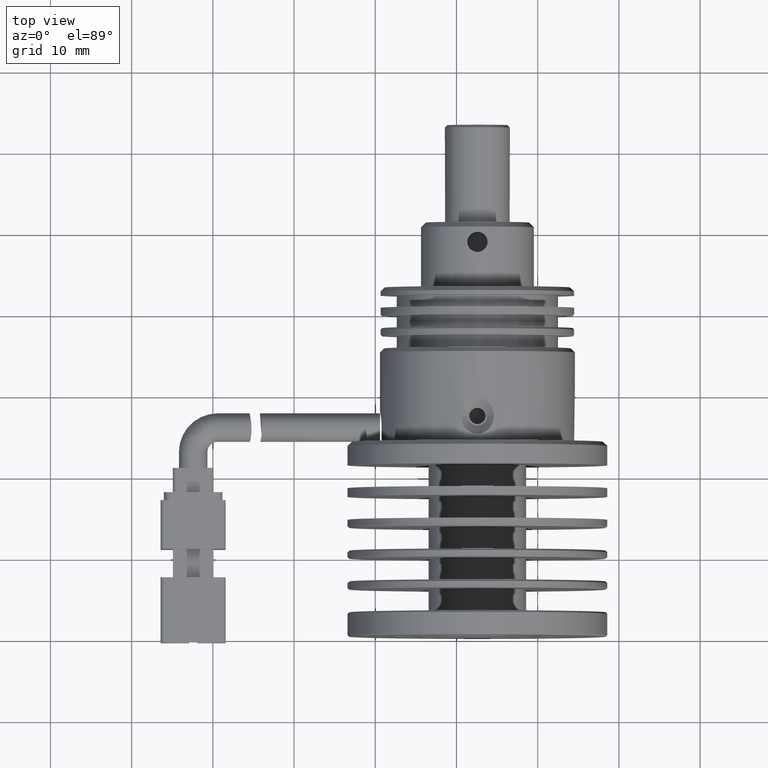
[diagram: clean part render]
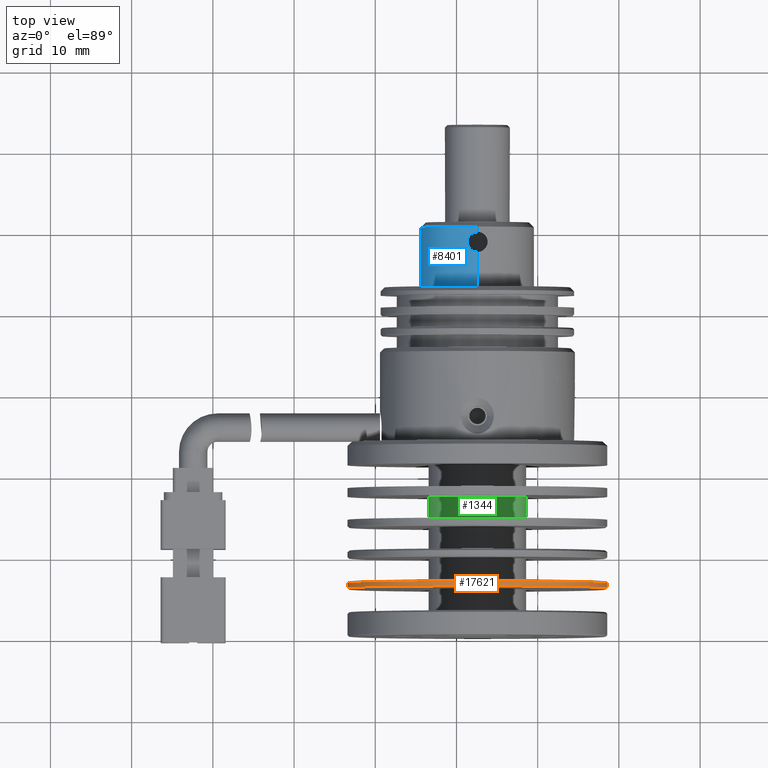
[diagram: same view with three faces highlighted in distinct colors, each labeled with its STEP entity id]
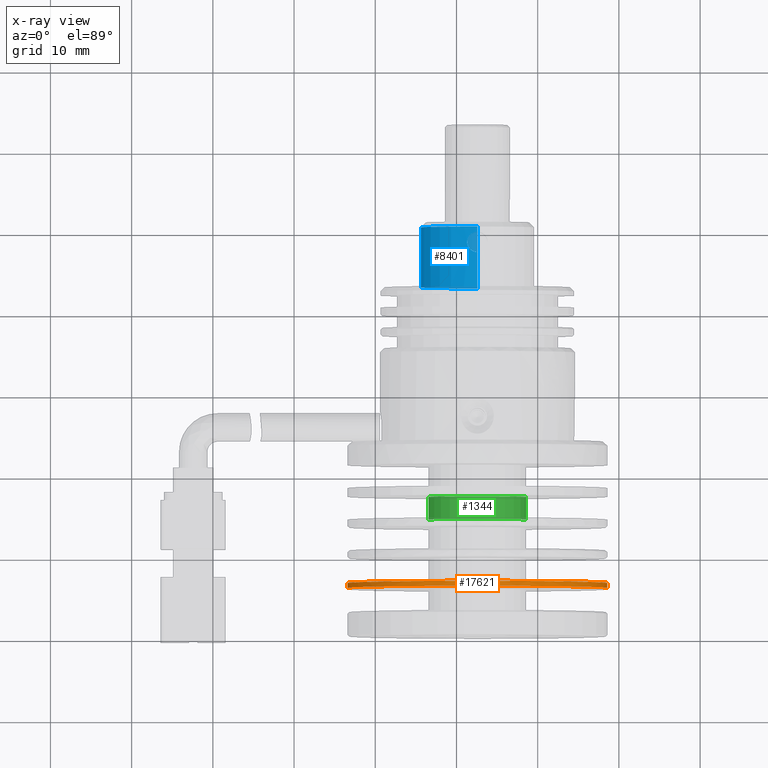
[diagram: x-ray of the same camera — body ghosted, the three highlighted faces saturated]
A machine part, top view with three faces highlighted in distinct colors.
The next image is the same camera in x-ray (body ghosted, the three faces saturated) — at least one of them is partly hidden behind the body in this view.
Their STEP definitions:

[orange] entity #17621 — the highlighted cylindrical surface (partial cylindrical patch) has radius 16 mm, axis along (-0, -1, 0).
#273 = EDGE_LOOP ( 'NONE', ( #15464, #15374, #1172, #11889, #17491 ) ) ;
#321 = DIRECTION ( 'NONE',  ( 0.0000000000000000000, 1.000000000000000000, -0.0000000000000000000 ) ) ;
#597 = DIRECTION ( 'NONE',  ( -1.000000000000000000, 0.0000000000000000000, 0.0000000000000000000 ) ) ;
#786 = EDGE_CURVE ( 'NONE', #19481, #5749, #8129, .T. ) ;
#826 = FACE_OUTER_BOUND ( 'NONE', #273, .T. ) ;
#880 = EDGE_CURVE ( 'NONE', #5749, #10954, #2851, .T. ) ;
#1041 = DIRECTION ( 'NONE',  ( -1.000000000000000000, 0.0000000000000000000, 0.0000000000000000000 ) ) ;
#1172 = ORIENTED_EDGE ( 'NONE', *, *, #18109, .F. ) ;
#1289 = VERTEX_POINT ( 'NONE', #5969 ) ;
#1414 = CARTESIAN_POINT ( 'NONE',  ( -13.42506621236430900, -10.71493551001260000, -9.174035921659418900 ) ) ;
#1942 = CARTESIAN_POINT ( 'NONE',  ( 18.57493378763569300, -33.11493551001261400, -9.174035921659420700 ) ) ;
#2851 = LINE ( 'NONE', #16503, #6944 ) ;
#2852 = AXIS2_PLACEMENT_3D ( 'NONE', #18993, #9814, #597 ) ;
#3302 = CIRCLE ( 'NONE', #8561, 16.00000000000000000 ) ;
#3718 = AXIS2_PLACEMENT_3D ( 'NONE', #10187, #19366, #1041 ) ;
#4630 = CARTESIAN_POINT ( 'NONE',  ( 2.574933787635692400, -33.11493551001261400, -9.174035921659418900 ) ) ;
#4781 = VECTOR ( 'NONE', #19880, 1000.000000000000000 ) ;
#5418 = DIRECTION ( 'NONE',  ( -1.000000000000000000, 0.0000000000000000000, 0.0000000000000000000 ) ) ;
#5749 = VERTEX_POINT ( 'NONE', #1942 ) ;
#5969 = CARTESIAN_POINT ( 'NONE',  ( -13.42506621236430900, -33.71493551001261600, -9.174035921659420700 ) ) ;
#6147 = EDGE_CURVE ( 'NONE', #12667, #1289, #8899, .T. ) ;
#6451 = EDGE_CURVE ( 'NONE', #1289, #10954, #3302, .T. ) ;
#6944 = VECTOR ( 'NONE', #15241, 1000.000000000000000 ) ;
#7071 = CYLINDRICAL_SURFACE ( 'NONE', #3718, 16.00000000000000000 ) ;
#8129 = CIRCLE ( 'NONE', #10409, 16.00000000000000000 ) ;
#8561 = AXIS2_PLACEMENT_3D ( 'NONE', #9538, #321, #11069 ) ;
#8899 = LINE ( 'NONE', #1414, #4781 ) ;
#9538 = CARTESIAN_POINT ( 'NONE',  ( 2.574933787635692400, -33.71493551001261600, -9.174035921659418900 ) ) ;
#9814 = DIRECTION ( 'NONE',  ( 0.0000000000000000000, 1.000000000000000000, -0.0000000000000000000 ) ) ;
#10187 = CARTESIAN_POINT ( 'NONE',  ( 2.574933787635692400, -10.71493551001260000, -9.174035921659418900 ) ) ;
#10409 = AXIS2_PLACEMENT_3D ( 'NONE', #4630, #18256, #5418 ) ;
#10954 = VERTEX_POINT ( 'NONE', #12610 ) ;
#11069 = DIRECTION ( 'NONE',  ( -1.000000000000000000, 0.0000000000000000000, 0.0000000000000000000 ) ) ;
#11889 = ORIENTED_EDGE ( 'NONE', *, *, #6147, .T. ) ;
#12610 = CARTESIAN_POINT ( 'NONE',  ( 18.57493378763569300, -33.71493551001261600, -9.174035921659418900 ) ) ;
#12667 = VERTEX_POINT ( 'NONE', #17265 ) ;
#14001 = CIRCLE ( 'NONE', #2852, 16.00000000000000000 ) ;
#15241 = DIRECTION ( 'NONE',  ( -0.0000000000000000000, -1.000000000000000000, 0.0000000000000000000 ) ) ;
#15374 = ORIENTED_EDGE ( 'NONE', *, *, #786, .F. ) ;
#15464 = ORIENTED_EDGE ( 'NONE', *, *, #880, .F. ) ;
#15548 = CARTESIAN_POINT ( 'NONE',  ( 2.574933787635694600, -33.11493551001261400, 6.825964078340588200 ) ) ;
#16503 = CARTESIAN_POINT ( 'NONE',  ( 18.57493378763569300, -10.71493551001260000, -9.174035921659420700 ) ) ;
#17265 = CARTESIAN_POINT ( 'NONE',  ( -13.42506621236430900, -33.11493551001261400, -9.174035921659418900 ) ) ;
#17491 = ORIENTED_EDGE ( 'NONE', *, *, #6451, .T. ) ;
#17621 = ADVANCED_FACE ( 'NONE', ( #826 ), #7071, .T. ) ;
#18109 = EDGE_CURVE ( 'NONE', #12667, #19481, #14001, .T. ) ;
#18256 = DIRECTION ( 'NONE',  ( 0.0000000000000000000, 1.000000000000000000, -0.0000000000000000000 ) ) ;
#18993 = CARTESIAN_POINT ( 'NONE',  ( 2.574933787635692400, -33.11493551001261400, -9.174035921659418900 ) ) ;
#19366 = DIRECTION ( 'NONE',  ( -0.0000000000000000000, -1.000000000000000000, 0.0000000000000000000 ) ) ;
#19481 = VERTEX_POINT ( 'NONE', #15548 ) ;
#19880 = DIRECTION ( 'NONE',  ( -0.0000000000000000000, -1.000000000000000000, 0.0000000000000000000 ) ) ;

[blue] entity #8401 — the highlighted cylindrical surface (partial cylindrical patch) has radius 7 mm, axis along (-0, -1, -0).
#496 = CARTESIAN_POINT ( 'NONE',  ( 1.358281554034157100, 8.455338221747922500, -2.280287506248631900 ) ) ;
#669 = LINE ( 'NONE', #9568, #4272 ) ;
#727 = DIRECTION ( 'NONE',  ( 0.0000000000000000000, 0.0000000000000000000, -1.000000000000000000 ) ) ;
#939 = CARTESIAN_POINT ( 'NONE',  ( 2.574933787635819400, 10.03506448998739500, -2.174035921659384800 ) ) ;
#950 = VERTEX_POINT ( 'NONE', #962 ) ;
#962 = CARTESIAN_POINT ( 'NONE',  ( 1.324933787635824900, 8.785064489987400200, -2.286547264681427500 ) ) ;
#1062 = CARTESIAN_POINT ( 'NONE',  ( 2.574933787635819400, 10.68506448998739200, -2.174035921659384800 ) ) ;
#1114 = CARTESIAN_POINT ( 'NONE',  ( 2.574933787635818900, 10.68506448998739200, -9.174035921659385200 ) ) ;
#1629 = CARTESIAN_POINT ( 'NONE',  ( 2.574933787635819400, 3.285064489987402000, -2.174035921659384800 ) ) ;
#2017 = CARTESIAN_POINT ( 'NONE',  ( 1.324933787635824900, 8.785064489987400200, -2.286547264681427500 ) ) ;
#2142 = B_SPLINE_CURVE_WITH_KNOTS ( 'NONE', 3,
 ( #10614, #19802, #13678, #4479, #15218, #6043, #16733, #7578, #18293, #9134 ),
 .UNSPECIFIED., .F., .F.,
 ( 4, 2, 2, 2, 4 ),
 ( 0.001956628179997719600, 0.002445795228697541500, 0.002934962277397363900, 0.003424129326097185900, 0.003913296374797006900 ),
 .UNSPECIFIED. ) ;
#2473 = LINE ( 'NONE', #10456, #14222 ) ;
#2586 = VECTOR ( 'NONE', #14967, 1000.000000000000000 ) ;
#2649 = DIRECTION ( 'NONE',  ( 0.0000000000000000000, 0.0000000000000000000, -1.000000000000000000 ) ) ;
#2679 = CYLINDRICAL_SURFACE ( 'NONE', #5207, 6.999999999999999100 ) ;
#2726 = DIRECTION ( 'NONE',  ( -0.0000000000000000000, -1.000000000000000000, -0.0000000000000000000 ) ) ;
#3444 = DIRECTION ( 'NONE',  ( -0.0000000000000000000, -1.000000000000000000, -0.0000000000000000000 ) ) ;
#4272 = VECTOR ( 'NONE', #3444, 1000.000000000000000 ) ;
#4479 = CARTESIAN_POINT ( 'NONE',  ( 1.483060018993017900, 9.415235378894767100, -2.259424091046829300 ) ) ;
#4547 = ORIENTED_EDGE ( 'NONE', *, *, #13134, .T. ) ;
#4581 = ORIENTED_EDGE ( 'NONE', *, *, #16041, .T. ) ;
#5063 = CARTESIAN_POINT ( 'NONE',  ( 2.409508600820394100, 7.535064489987549400, -2.174035921659410100 ) ) ;
#5207 = AXIS2_PLACEMENT_3D ( 'NONE', #9931, #14469, #727 ) ;
#5263 = EDGE_CURVE ( 'NONE', #17076, #16333, #2473, .T. ) ;
#6043 = CARTESIAN_POINT ( 'NONE',  ( 1.805723226193725300, 9.783694287535576400, -2.215462498345197600 ) ) ;
#6062 = ORIENTED_EDGE ( 'NONE', *, *, #5263, .F. ) ;
#6126 = CARTESIAN_POINT ( 'NONE',  ( 2.574933787635818900, 3.285064489987402000, -9.174035921659385200 ) ) ;
#6216 = CARTESIAN_POINT ( 'NONE',  ( 2.574933787635819400, 7.535064489987405500, -2.174035921659384800 ) ) ;
#6306 = ORIENTED_EDGE ( 'NONE', *, *, #11858, .T. ) ;
#6607 = CARTESIAN_POINT ( 'NONE',  ( 2.247208188361810700, 7.567730446778576900, -2.180068937145352300 ) ) ;
#7382 = CARTESIAN_POINT ( 'NONE',  ( 2.574933787635818900, -38.96480397725189000, -16.17403592165938500 ) ) ;
#7578 = CARTESIAN_POINT ( 'NONE',  ( 2.245204859312205600, 10.00171700468597400, -2.180185155056340500 ) ) ;
#7668 = DIRECTION ( 'NONE',  ( 0.0000000000000000000, 0.0000000000000000000, -1.000000000000000000 ) ) ;
#8132 = CARTESIAN_POINT ( 'NONE',  ( 1.806341939490901300, 7.785958162649817100, -2.215392939097664100 ) ) ;
#8313 = VERTEX_POINT ( 'NONE', #6216 ) ;
#8401 = ADVANCED_FACE ( 'NONE', ( #12271 ), #2679, .T. ) ;
#9134 = CARTESIAN_POINT ( 'NONE',  ( 2.574933787635819400, 10.03506448998739500, -2.174035921659384800 ) ) ;
#9548 = EDGE_CURVE ( 'NONE', #11595, #19408, #14329, .T. ) ;
#9568 = CARTESIAN_POINT ( 'NONE',  ( 2.574933787635819400, -38.96480397725189000, -2.174035921659384800 ) ) ;
#9704 = CARTESIAN_POINT ( 'NONE',  ( 1.483195216582881400, 8.154930407453898400, -2.259405290527923200 ) ) ;
#9931 = CARTESIAN_POINT ( 'NONE',  ( 2.574933787635818900, -38.96480397725189000, -9.174035921659385200 ) ) ;
#10456 = CARTESIAN_POINT ( 'NONE',  ( 2.574933787635819400, -38.96480397725189000, -2.174035921659384800 ) ) ;
#10614 = CARTESIAN_POINT ( 'NONE',  ( 1.324933787635824900, 8.785064489987400200, -2.286547264681427500 ) ) ;
#11235 = CARTESIAN_POINT ( 'NONE',  ( 1.324933787635824900, 8.619641835386621800, -2.286547264681427500 ) ) ;
#11394 = VERTEX_POINT ( 'NONE', #1629 ) ;
#11595 = VERTEX_POINT ( 'NONE', #14596 ) ;
#11696 = EDGE_CURVE ( 'NONE', #17076, #11595, #13163, .T. ) ;
#11858 = EDGE_CURVE ( 'NONE', #19408, #11394, #15063, .T. ) ;
#11863 = DIRECTION ( 'NONE',  ( -0.0000000000000000000, -1.000000000000000000, -0.0000000000000000000 ) ) ;
#12271 = FACE_OUTER_BOUND ( 'NONE', #12706, .T. ) ;
#12706 = EDGE_LOOP ( 'NONE', ( #6062, #15625, #15601, #6306, #16866, #4547, #4581 ) ) ;
#13120 = B_SPLINE_CURVE_WITH_KNOTS ( 'NONE', 3,
 ( #15776, #5063, #6607, #17317, #8132, #18875, #9704, #496, #11235, #2017 ),
 .UNSPECIFIED., .F., .F.,
 ( 4, 2, 2, 2, 4 ),
 ( -1.066963357942984900E-015, 0.0004891570449986296500, 0.0009783140899983261600, 0.001467471134998022900, 0.001956628179997719600 ),
 .UNSPECIFIED. ) ;
#13134 = EDGE_CURVE ( 'NONE', #8313, #950, #13120, .T. ) ;
#13163 = CIRCLE ( 'NONE', #17877, 6.999999999999999100 ) ;
#13678 = CARTESIAN_POINT ( 'NONE',  ( 1.357600183870634200, 9.112787807773308700, -2.280405238786866700 ) ) ;
#14222 = VECTOR ( 'NONE', #2726, 1000.000000000000000 ) ;
#14329 = LINE ( 'NONE', #7382, #2586 ) ;
#14469 = DIRECTION ( 'NONE',  ( -0.0000000000000000000, -1.000000000000000000, -0.0000000000000000000 ) ) ;
#14596 = CARTESIAN_POINT ( 'NONE',  ( 2.574933787635818900, 10.68506448998739200, -16.17403592165938500 ) ) ;
#14967 = DIRECTION ( 'NONE',  ( -0.0000000000000000000, -1.000000000000000000, -0.0000000000000000000 ) ) ;
#15063 = CIRCLE ( 'NONE', #18504, 6.999999999999999100 ) ;
#15218 = CARTESIAN_POINT ( 'NONE',  ( 1.575812559185121100, 9.553636627944758400, -2.244736841207757300 ) ) ;
#15601 = ORIENTED_EDGE ( 'NONE', *, *, #9548, .T. ) ;
#15625 = ORIENTED_EDGE ( 'NONE', *, *, #11696, .T. ) ;
#15776 = CARTESIAN_POINT ( 'NONE',  ( 2.574933787635819400, 7.535064489987405500, -2.174035921659384800 ) ) ;
#16041 = EDGE_CURVE ( 'NONE', #950, #16333, #2142, .T. ) ;
#16333 = VERTEX_POINT ( 'NONE', #939 ) ;
#16733 = CARTESIAN_POINT ( 'NONE',  ( 1.944784189239528800, 9.876795222053138100, -2.200831407569150400 ) ) ;
#16827 = DIRECTION ( 'NONE',  ( 0.0000000000000000000, 1.000000000000000000, 0.0000000000000000000 ) ) ;
#16866 = ORIENTED_EDGE ( 'NONE', *, *, #19037, .F. ) ;
#17016 = CARTESIAN_POINT ( 'NONE',  ( 2.574933787635818900, 3.285064489987402000, -16.17403592165938500 ) ) ;
#17076 = VERTEX_POINT ( 'NONE', #1062 ) ;
#17317 = CARTESIAN_POINT ( 'NONE',  ( 1.944747125399914200, 7.693198650282437400, -2.200812633994505800 ) ) ;
#17877 = AXIS2_PLACEMENT_3D ( 'NONE', #1114, #11863, #2649 ) ;
#18293 = CARTESIAN_POINT ( 'NONE',  ( 2.409511737074332900, 10.03506448998739500, -2.174035921659384800 ) ) ;
#18504 = AXIS2_PLACEMENT_3D ( 'NONE', #6126, #16827, #7668 ) ;
#18875 = CARTESIAN_POINT ( 'NONE',  ( 1.576286806485190000, 8.015875898418622500, -2.244667278353630100 ) ) ;
#19037 = EDGE_CURVE ( 'NONE', #8313, #11394, #669, .T. ) ;
#19408 = VERTEX_POINT ( 'NONE', #17016 ) ;
#19802 = CARTESIAN_POINT ( 'NONE',  ( 1.324933787635825400, 8.950490527629774800, -2.286547264681428000 ) ) ;

[green] entity #1344 — the highlighted cylindrical surface (partial cylindrical patch) has radius 6 mm, axis along (-0, -1, 0).
#172 = DIRECTION ( 'NONE',  ( -1.156482317317871500E-016, -1.000000000000000000, 0.0000000000000000000 ) ) ;
#356 = ORIENTED_EDGE ( 'NONE', *, *, #15503, .T. ) ;
#920 = AXIS2_PLACEMENT_3D ( 'NONE', #11949, #8870, #13671 ) ;
#1022 = EDGE_CURVE ( 'NONE', #12590, #11578, #14354, .T. ) ;
#1344 = ADVANCED_FACE ( 'NONE', ( #5729 ), #16006, .T. ) ;
#1637 = AXIS2_PLACEMENT_3D ( 'NONE', #16304, #16373, #17236 ) ;
#2020 = CARTESIAN_POINT ( 'NONE',  ( 2.574933787635694600, -22.51493551001259500, -9.174035921659418900 ) ) ;
#3202 = EDGE_CURVE ( 'NONE', #6301, #6076, #19170, .T. ) ;
#3371 = CARTESIAN_POINT ( 'NONE',  ( 8.574933787635732300, -39.71493551001260200, -9.174035921659418900 ) ) ;
#3576 = DIRECTION ( 'NONE',  ( -1.000000000000000000, 0.0000000000000000000, 0.0000000000000000000 ) ) ;
#4131 = ORIENTED_EDGE ( 'NONE', *, *, #3202, .F. ) ;
#4147 = ORIENTED_EDGE ( 'NONE', *, *, #13093, .F. ) ;
#5729 = FACE_OUTER_BOUND ( 'NONE', #6956, .T. ) ;
#6076 = VERTEX_POINT ( 'NONE', #8955 ) ;
#6301 = VERTEX_POINT ( 'NONE', #9610 ) ;
#6428 = CARTESIAN_POINT ( 'NONE',  ( -3.425066212364345800, -25.31493551001259900, -9.174035921659418900 ) ) ;
#6472 = DIRECTION ( 'NONE',  ( -1.156482317317871500E-016, -1.000000000000000000, 0.0000000000000000000 ) ) ;
#6956 = EDGE_LOOP ( 'NONE', ( #4147, #4131, #356, #9488 ) ) ;
#8870 = DIRECTION ( 'NONE',  ( -1.156482317317871500E-016, -1.000000000000000000, 0.0000000000000000000 ) ) ;
#8955 = CARTESIAN_POINT ( 'NONE',  ( 8.574933787635734100, -22.51493551001259500, -9.174035921659418900 ) ) ;
#9488 = ORIENTED_EDGE ( 'NONE', *, *, #1022, .T. ) ;
#9610 = CARTESIAN_POINT ( 'NONE',  ( -3.425066212364345400, -22.51493551001259500, -9.174035921659418900 ) ) ;
#10443 = LINE ( 'NONE', #3371, #14015 ) ;
#11578 = VERTEX_POINT ( 'NONE', #13053 ) ;
#11949 = CARTESIAN_POINT ( 'NONE',  ( 2.574933787635692400, -39.71493551001260200, -9.174035921659418900 ) ) ;
#12590 = VERTEX_POINT ( 'NONE', #6428 ) ;
#12784 = DIRECTION ( 'NONE',  ( 1.156482317317871500E-016, 1.000000000000000000, -0.0000000000000000000 ) ) ;
#13053 = CARTESIAN_POINT ( 'NONE',  ( 8.574933787635734100, -25.31493551001259900, -9.174035921659418900 ) ) ;
#13093 = EDGE_CURVE ( 'NONE', #6076, #11578, #10443, .T. ) ;
#13107 = VECTOR ( 'NONE', #172, 1000.000000000000000 ) ;
#13671 = DIRECTION ( 'NONE',  ( -1.000000000000000000, 0.0000000000000000000, 0.0000000000000000000 ) ) ;
#14015 = VECTOR ( 'NONE', #6472, 1000.000000000000000 ) ;
#14354 = CIRCLE ( 'NONE', #1637, 6.000000000000040000 ) ;
#14982 = AXIS2_PLACEMENT_3D ( 'NONE', #2020, #12784, #3576 ) ;
#15503 = EDGE_CURVE ( 'NONE', #6301, #12590, #17154, .T. ) ;
#16006 = CYLINDRICAL_SURFACE ( 'NONE', #920, 6.000000000000040000 ) ;
#16304 = CARTESIAN_POINT ( 'NONE',  ( 2.574933787635694100, -25.31493551001259900, -9.174035921659418900 ) ) ;
#16373 = DIRECTION ( 'NONE',  ( 1.156482317317871500E-016, 1.000000000000000000, -0.0000000000000000000 ) ) ;
#17154 = LINE ( 'NONE', #18544, #13107 ) ;
#17236 = DIRECTION ( 'NONE',  ( -1.000000000000000000, 0.0000000000000000000, 0.0000000000000000000 ) ) ;
#18544 = CARTESIAN_POINT ( 'NONE',  ( -3.425066212364347600, -39.71493551001260200, -9.174035921659418900 ) ) ;
#19170 = CIRCLE ( 'NONE', #14982, 6.000000000000040000 ) ;